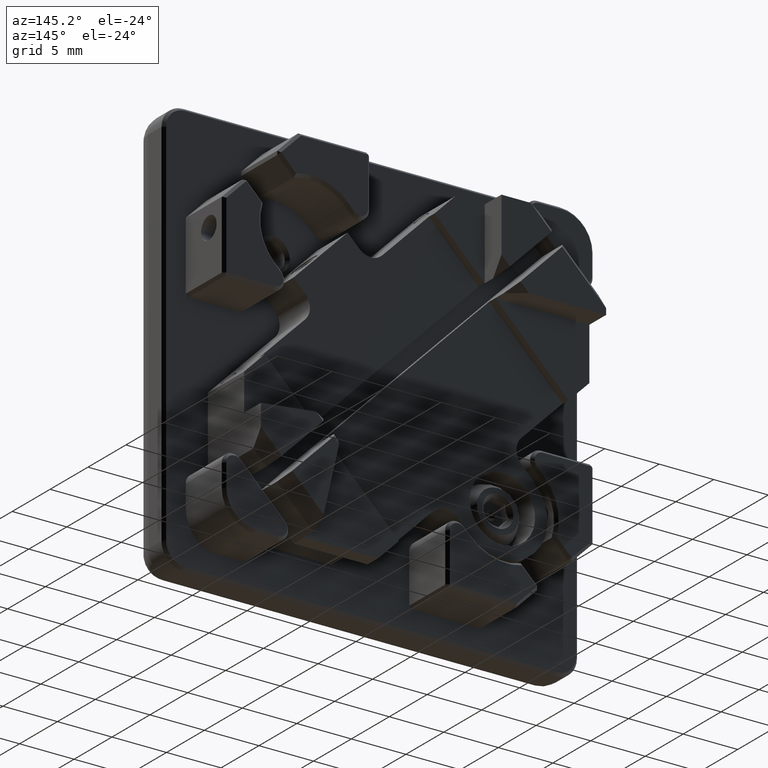
[diagram: clean part render]
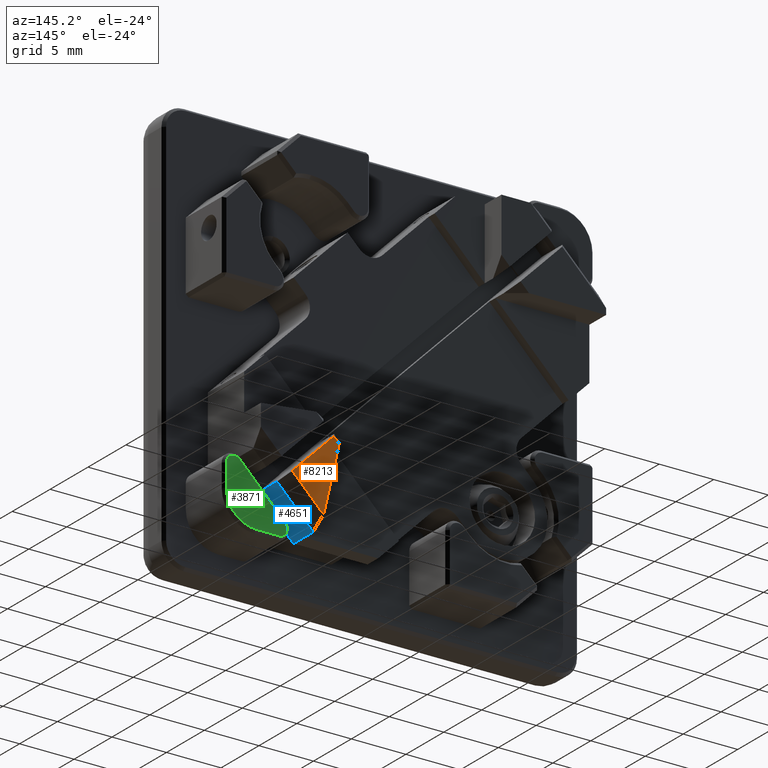
[diagram: same view with three faces highlighted in distinct colors, each labeled with its STEP entity id]
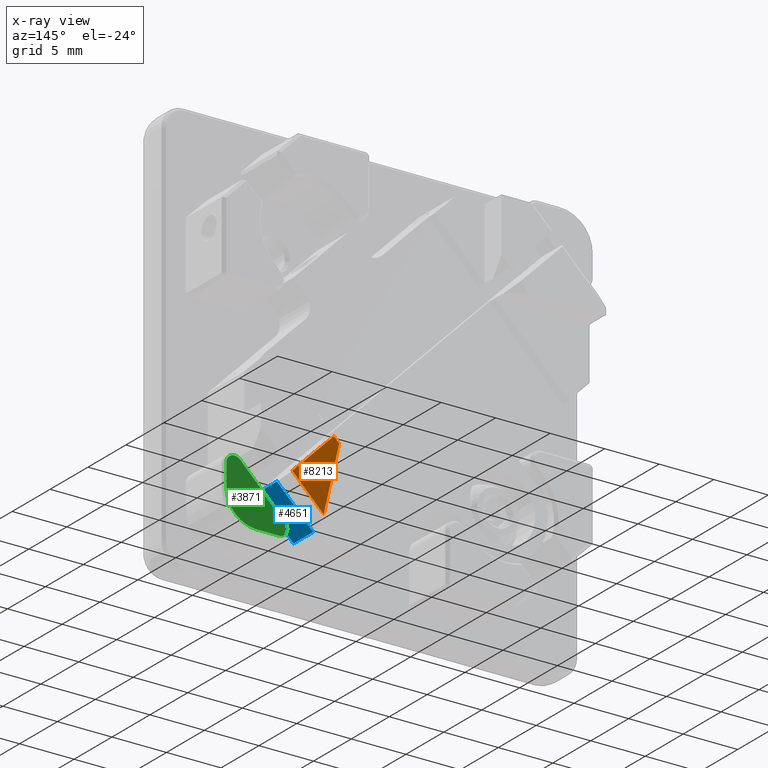
[diagram: x-ray of the same camera — body ghosted, the three highlighted faces saturated]
A machine part, auxiliary view with three faces highlighted in distinct colors.
The next image is the same camera in x-ray (body ghosted, the three faces saturated) — at least one of them is partly hidden behind the body in this view.
Their STEP definitions:

[orange] entity #8213 — the highlighted planar face has unit normal (-0, 1, 0).
#18 = PLANE ( 'NONE',  #9857 ) ;
#64 = EDGE_CURVE ( 'NONE', #7540, #10009, #10363, .T. ) ;
#191 = VECTOR ( 'NONE', #3273, 1000.000000000000114 ) ;
#302 = EDGE_CURVE ( 'NONE', #10009, #2791, #8343, .T. ) ;
#553 = LINE ( 'NONE', #5392, #8917 ) ;
#2026 = EDGE_LOOP ( 'NONE', ( #11166, #8657, #4272, #6233 ) ) ;
#2100 = DIRECTION ( 'NONE',  ( 0.7071067811865474617, 0.000000000000000000, 0.7071067811865474617 ) ) ;
#2389 = FACE_OUTER_BOUND ( 'NONE', #2026, .T. ) ;
#2399 = VECTOR ( 'NONE', #5921, 1000.000000000000114 ) ;
#2539 = DIRECTION ( 'NONE',  ( -0.7071067811865474617, 0.000000000000000000, -0.7071067811865474617 ) ) ;
#2784 = DIRECTION ( 'NONE',  ( -0.7071067811865476838, -0.000000000000000000, -0.7071067811865474617 ) ) ;
#2791 = VERTEX_POINT ( 'NONE', #8720 ) ;
#3273 = DIRECTION ( 'NONE',  ( 0.7071067811865474617, 0.000000000000000000, -0.7071067811865474617 ) ) ;
#3457 = EDGE_CURVE ( 'NONE', #7947, #2791, #553, .T. ) ;
#4272 = ORIENTED_EDGE ( 'NONE', *, *, #3457, .T. ) ;
#5392 = CARTESIAN_POINT ( 'NONE',  ( 9.050966799187776246, 9.400000000000000355, -15.69777054234129032 ) ) ;
#5921 = DIRECTION ( 'NONE',  ( 0.2236924107188823230, 0.000000000000000000, -0.9746597895608368756 ) ) ;
#6233 = ORIENTED_EDGE ( 'NONE', *, *, #302, .F. ) ;
#6311 = CARTESIAN_POINT ( 'NONE',  ( 12.37436867076453950, 9.400000000000000355, -12.37436867076452707 ) ) ;
#6361 = EDGE_CURVE ( 'NONE', #7540, #7947, #6421, .T. ) ;
#6421 = LINE ( 'NONE', #8827, #191 ) ;
#6767 = CARTESIAN_POINT ( 'NONE',  ( 3.394112549695384118, 9.400000000000000355, 3.394112549695484926 ) ) ;
#7540 = VERTEX_POINT ( 'NONE', #9712 ) ;
#7683 = DIRECTION ( 'NONE',  ( -0.000000000000000000, 1.000000000000000000, 0.000000000000000000 ) ) ;
#7844 = CARTESIAN_POINT ( 'NONE',  ( 9.758073580374324152, 9.400000000000000355, -16.40487732352783823 ) ) ;
#7947 = VERTEX_POINT ( 'NONE', #6311 ) ;
#8213 = ADVANCED_FACE ( 'NONE', ( #2389 ), #18, .T. ) ;
#8343 = LINE ( 'NONE', #7844, #2399 ) ;
#8423 = CARTESIAN_POINT ( 'NONE',  ( 11.95010460205261893, 9.400000000000000355, -5.161879502661746777 ) ) ;
#8657 = ORIENTED_EDGE ( 'NONE', *, *, #6361, .T. ) ;
#8720 = CARTESIAN_POINT ( 'NONE',  ( 9.494087048731342904, 9.400000000000000355, -15.25465029279772189 ) ) ;
#8827 = CARTESIAN_POINT ( 'NONE',  ( -13.08147545195117623, 9.400000000000000355, 13.08147545195118866 ) ) ;
#8917 = VECTOR ( 'NONE', #2539, 1000.000000000000114 ) ;
#9712 = CARTESIAN_POINT ( 'NONE',  ( 8.555992052357190403, 9.400000000000000355, -8.555992052357176192 ) ) ;
#9857 = AXIS2_PLACEMENT_3D ( 'NONE', #6767, #7683, #2100 ) ;
#10009 = VERTEX_POINT ( 'NONE', #10758 ) ;
#10363 = LINE ( 'NONE', #8423, #10663 ) ;
#10663 = VECTOR ( 'NONE', #2784, 1000.000000000000000 ) ;
#10758 = CARTESIAN_POINT ( 'NONE',  ( 8.068559777859258375, 9.400000000000000355, -9.043424326855106443 ) ) ;
#11166 = ORIENTED_EDGE ( 'NONE', *, *, #64, .F. ) ;

[blue] entity #4651 — the highlighted planar face has unit normal (-0.7071, 0, 0.7071).
#48 = EDGE_CURVE ( 'NONE', #3149, #8323, #11693, .T. ) ;
#614 = DIRECTION ( 'NONE',  ( 0.7071067811865474617, 0.000000000000000000, 0.7071067811865474617 ) ) ;
#775 = CARTESIAN_POINT ( 'NONE',  ( 13.08147545195108741, 5.799999999999999822, -13.08147545195107675 ) ) ;
#834 = ORIENTED_EDGE ( 'NONE', *, *, #2451, .T. ) ;
#899 = DIRECTION ( 'NONE',  ( -0.7071067811865476838, -0.000000000000000000, -0.7071067811865474617 ) ) ;
#1030 = ORIENTED_EDGE ( 'NONE', *, *, #10402, .T. ) ;
#1524 = CARTESIAN_POINT ( 'NONE',  ( 9.758073580374324152, 7.200000000000000178, -16.40487732352783823 ) ) ;
#1547 = VECTOR ( 'NONE', #1845, 1000.000000000000000 ) ;
#1690 = LINE ( 'NONE', #1524, #8512 ) ;
#1766 = LINE ( 'NONE', #4484, #9302 ) ;
#1845 = DIRECTION ( 'NONE',  ( 0.000000000000000000, 1.000000000000000000, 0.000000000000000000 ) ) ;
#1966 = ORIENTED_EDGE ( 'NONE', *, *, #11012, .T. ) ;
#2304 = LINE ( 'NONE', #11621, #5630 ) ;
#2322 = VERTEX_POINT ( 'NONE', #8262 ) ;
#2451 = EDGE_CURVE ( 'NONE', #8646, #3149, #6235, .T. ) ;
#3149 = VERTEX_POINT ( 'NONE', #9627 ) ;
#3188 = CARTESIAN_POINT ( 'NONE',  ( 13.08147545195108741, 8.399999999999993250, -13.08147545195107675 ) ) ;
#3503 = AXIS2_PLACEMENT_3D ( 'NONE', #7179, #8936, #8088 ) ;
#3594 = DIRECTION ( 'NONE',  ( -0.000000000000000000, -1.000000000000000000, 0.000000000000000000 ) ) ;
#3696 = CARTESIAN_POINT ( 'NONE',  ( 9.758073580374320599, 6.400000000000000355, -16.40487732352784178 ) ) ;
#4371 = VERTEX_POINT ( 'NONE', #3188 ) ;
#4484 = CARTESIAN_POINT ( 'NONE',  ( 13.08147545195108741, 9.400000000000000355, -13.08147545195107675 ) ) ;
#4651 = ADVANCED_FACE ( 'NONE', ( #6123 ), #10818, .F. ) ;
#4709 = CARTESIAN_POINT ( 'NONE',  ( 10.60660171779817240, 5.799999999999999822, -15.55634918610398998 ) ) ;
#5128 = CARTESIAN_POINT ( 'NONE',  ( 9.758073580374320599, 7.200000000000000178, -16.40487732352784178 ) ) ;
#5630 = VECTOR ( 'NONE', #614, 1000.000000000000114 ) ;
#6080 = ORIENTED_EDGE ( 'NONE', *, *, #48, .T. ) ;
#6123 = FACE_OUTER_BOUND ( 'NONE', #8818, .T. ) ;
#6235 = LINE ( 'NONE', #4709, #11100 ) ;
#6444 = ORIENTED_EDGE ( 'NONE', *, *, #8670, .T. ) ;
#7179 = CARTESIAN_POINT ( 'NONE',  ( 16.47558800164651416, 6.400000000000000355, -9.687362902255646446 ) ) ;
#8088 = DIRECTION ( 'NONE',  ( 0.7071067811865474617, 0.000000000000000000, 0.7071067811865474617 ) ) ;
#8262 = CARTESIAN_POINT ( 'NONE',  ( 9.758073580374324152, 8.399999999999993250, -16.40487732352783823 ) ) ;
#8323 = VERTEX_POINT ( 'NONE', #5128 ) ;
#8512 = VECTOR ( 'NONE', #11647, 1000.000000000000000 ) ;
#8646 = VERTEX_POINT ( 'NONE', #775 ) ;
#8670 = EDGE_CURVE ( 'NONE', #4371, #8646, #1766, .T. ) ;
#8818 = EDGE_LOOP ( 'NONE', ( #6444, #834, #6080, #1966, #1030 ) ) ;
#8936 = DIRECTION ( 'NONE',  ( -0.7071067811865475727, 0.000000000000000000, 0.7071067811865475727 ) ) ;
#9302 = VECTOR ( 'NONE', #3594, 1000.000000000000000 ) ;
#9627 = CARTESIAN_POINT ( 'NONE',  ( 9.758073580374320599, 5.799999999999999822, -16.40487732352784178 ) ) ;
#10402 = EDGE_CURVE ( 'NONE', #2322, #4371, #2304, .T. ) ;
#10818 = PLANE ( 'NONE',  #3503 ) ;
#11012 = EDGE_CURVE ( 'NONE', #8323, #2322, #1690, .T. ) ;
#11100 = VECTOR ( 'NONE', #899, 1000.000000000000000 ) ;
#11621 = CARTESIAN_POINT ( 'NONE',  ( 13.08147545195108741, 8.399999999999993250, -13.08147545195107675 ) ) ;
#11647 = DIRECTION ( 'NONE',  ( 0.000000000000000000, 1.000000000000000000, 0.000000000000000000 ) ) ;
#11693 = LINE ( 'NONE', #3696, #1547 ) ;

[green] entity #3871 — the highlighted planar face has unit normal (0, 1, 0).
#72 = DIRECTION ( 'NONE',  ( -1.000000000000000000, 0.000000000000000000, 0.000000000000000000 ) ) ;
#385 = CARTESIAN_POINT ( 'NONE',  ( 14.00000000000000178, 7.000000000000000000, -16.74999999999998934 ) ) ;
#676 = EDGE_CURVE ( 'NONE', #9268, #6967, #1936, .T. ) ;
#983 = CIRCLE ( 'NONE', #8374, 0.7499999999999937828 ) ;
#1138 = DIRECTION ( 'NONE',  ( 0.000000000000000000, 0.000000000000000000, -1.000000000000000000 ) ) ;
#1230 = ORIENTED_EDGE ( 'NONE', *, *, #676, .T. ) ;
#1288 = AXIS2_PLACEMENT_3D ( 'NONE', #7603, #9317, #1951 ) ;
#1424 = VECTOR ( 'NONE', #5087, 1000.000000000000000 ) ;
#1470 = CARTESIAN_POINT ( 'NONE',  ( 15.46966991411009218, 7.000000000000000000, -11.38388347648316312 ) ) ;
#1559 = VERTEX_POINT ( 'NONE', #385 ) ;
#1936 = CIRCLE ( 'NONE', #2383, 0.7499999999999937828 ) ;
#1951 = DIRECTION ( 'NONE',  ( 0.000000000000000000, 0.000000000000000000, 1.000000000000000000 ) ) ;
#1982 = EDGE_CURVE ( 'NONE', #1559, #9268, #10817, .T. ) ;
#2073 = DIRECTION ( 'NONE',  ( 0.000000000000000000, 0.000000000000000000, 1.000000000000000000 ) ) ;
#2099 = EDGE_CURVE ( 'NONE', #10080, #5626, #983, .T. ) ;
#2383 = AXIS2_PLACEMENT_3D ( 'NONE', #5304, #11650, #9014 ) ;
#2739 = EDGE_CURVE ( 'NONE', #6967, #10080, #6223, .T. ) ;
#2836 = ORIENTED_EDGE ( 'NONE', *, *, #2739, .T. ) ;
#2973 = ORIENTED_EDGE ( 'NONE', *, *, #3216, .T. ) ;
#3216 = EDGE_CURVE ( 'NONE', #3986, #1559, #9183, .T. ) ;
#3499 = CARTESIAN_POINT ( 'NONE',  ( 15.46966991411009396, 7.000000000000000000, -11.38388347648315957 ) ) ;
#3853 = CARTESIAN_POINT ( 'NONE',  ( 11.38388347648318266, 7.000000000000000000, -15.46966991411009040 ) ) ;
#3871 = ADVANCED_FACE ( 'NONE', ( #9927 ), #9450, .T. ) ;
#3929 = DIRECTION ( 'NONE',  ( 0.000000000000000000, -0.000000000000000000, 1.000000000000000000 ) ) ;
#3986 = VERTEX_POINT ( 'NONE', #4122 ) ;
#4044 = CARTESIAN_POINT ( 'NONE',  ( 16.74999999999999289, 7.000000000000000000, -11.91421356237306739 ) ) ;
#4122 = CARTESIAN_POINT ( 'NONE',  ( 16.74999999999999289, 7.000000000000000000, -13.99999999999999822 ) ) ;
#4359 = ORIENTED_EDGE ( 'NONE', *, *, #2099, .T. ) ;
#4813 = CARTESIAN_POINT ( 'NONE',  ( 16.74999999999999289, 7.000000000000000000, -13.99999999999999822 ) ) ;
#5087 = DIRECTION ( 'NONE',  ( 0.7071067811865459074, 0.000000000000000000, 0.7071067811865491270 ) ) ;
#5304 = CARTESIAN_POINT ( 'NONE',  ( 11.91421356237309226, 7.000000000000000000, -15.99999999999999645 ) ) ;
#5626 = VERTEX_POINT ( 'NONE', #4044 ) ;
#5636 = CARTESIAN_POINT ( 'NONE',  ( 11.91421356237309226, 7.000000000000000000, -16.74999999999998934 ) ) ;
#5822 = DIRECTION ( 'NONE',  ( 0.000000000000000000, 1.000000000000000000, 0.000000000000000000 ) ) ;
#6223 = LINE ( 'NONE', #1470, #1424 ) ;
#6442 = CARTESIAN_POINT ( 'NONE',  ( 11.91421356237309226, 7.000000000000000000, -16.74999999999998934 ) ) ;
#6967 = VERTEX_POINT ( 'NONE', #3853 ) ;
#7046 = EDGE_CURVE ( 'NONE', #5626, #3986, #10962, .T. ) ;
#7378 = VECTOR ( 'NONE', #1138, 1000.000000000000000 ) ;
#7603 = CARTESIAN_POINT ( 'NONE',  ( 14.00000000000000178, 7.000000000000000000, -13.99999999999999822 ) ) ;
#8372 = VECTOR ( 'NONE', #72, 1000.000000000000000 ) ;
#8374 = AXIS2_PLACEMENT_3D ( 'NONE', #9406, #11181, #2073 ) ;
#9014 = DIRECTION ( 'NONE',  ( 0.000000000000000000, 0.000000000000000000, 1.000000000000000000 ) ) ;
#9183 = CIRCLE ( 'NONE', #1288, 2.749999999999992006 ) ;
#9268 = VERTEX_POINT ( 'NONE', #5636 ) ;
#9317 = DIRECTION ( 'NONE',  ( 0.000000000000000000, 1.000000000000000000, 0.000000000000000000 ) ) ;
#9382 = ORIENTED_EDGE ( 'NONE', *, *, #7046, .T. ) ;
#9406 = CARTESIAN_POINT ( 'NONE',  ( 16.00000000000000000, 7.000000000000000000, -11.91421356237306739 ) ) ;
#9450 = PLANE ( 'NONE',  #10496 ) ;
#9529 = EDGE_LOOP ( 'NONE', ( #10943, #1230, #2836, #4359, #9382, #2973 ) ) ;
#9927 = FACE_OUTER_BOUND ( 'NONE', #9529, .T. ) ;
#10080 = VERTEX_POINT ( 'NONE', #3499 ) ;
#10495 = CARTESIAN_POINT ( 'NONE',  ( 0.000000000000000000, 7.000000000000000000, 0.000000000000000000 ) ) ;
#10496 = AXIS2_PLACEMENT_3D ( 'NONE', #10495, #5822, #3929 ) ;
#10817 = LINE ( 'NONE', #6442, #8372 ) ;
#10943 = ORIENTED_EDGE ( 'NONE', *, *, #1982, .T. ) ;
#10962 = LINE ( 'NONE', #4813, #7378 ) ;
#11181 = DIRECTION ( 'NONE',  ( 0.000000000000000000, 1.000000000000000000, 0.000000000000000000 ) ) ;
#11650 = DIRECTION ( 'NONE',  ( 0.000000000000000000, 1.000000000000000000, 0.000000000000000000 ) ) ;